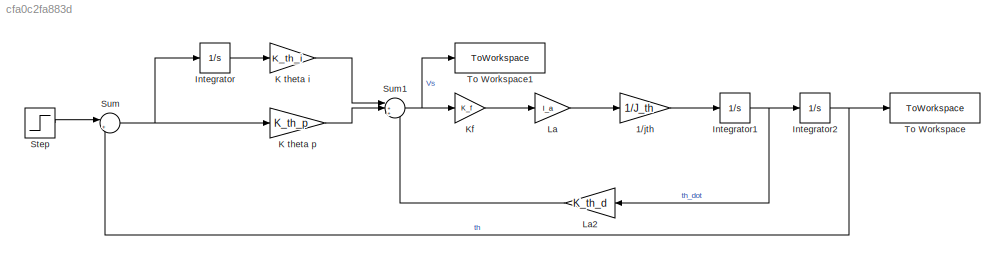
MODEL slx_cfa0c2fa883d
KIND model
CONFIG AbsTol = auto
CONFIG EnableMultiTasking = off
CONFIG FixedStep = auto
CONFIG MaxStep = auto
CONFIG MinStep = auto
CONFIG RelTol = 1e-3
CONFIG SampleTimeConstraint = Unconstrained
CONFIG SolverName = VariableStepAuto
CONFIG StartTime = 0.0
CONFIG StopTime = 20
BLOCK [Gain] 1//jth
  Gain = 1/J_th
BLOCK [Integrator] Integrator
  Ports = [1, 1]
BLOCK [Integrator] Integrator1
  Ports = [1, 1]
BLOCK [Integrator] Integrator2
  Ports = [1, 1]
BLOCK [Gain] K theta i
  Gain = K_th_i
BLOCK [Gain] K theta p
  Gain = K_th_p
BLOCK [Gain] Kf
  Gain = K_f
BLOCK [Gain] La
  Gain = l_a
BLOCK [Gain] La2
  Gain = K_th_d
  NameLocation = top
BLOCK [Step] Step
  After = deg2rad(20)
  SampleTime = 0.01
  Time = 0
BLOCK [Sum] Sum
  Inputs = |+-
  Ports = [2, 1]
BLOCK [Sum] Sum1
  Inputs = |++-
  Ports = [3, 1]
BLOCK [ToWorkspace] To Workspace
  FixptAsFi = on
  MaxDataPoints = inf
  Ports = [1]
  SampleTime = -1
  VariableName = pitch_out
BLOCK [ToWorkspace] To Workspace1
  FixptAsFi = on
  MaxDataPoints = inf
  Ports = [1]
  SampleTime = -1
  VariableName = pitch_Vs
LINE 1//jth:1 -> Integrator1:1
NET Integrator1:1 -> Integrator2:1, La2:1
NET Integrator2:1 -> Sum:2, To Workspace:1
LINE Integrator:1 -> K theta i:1
LINE K theta i:1 -> Sum1:1
LINE K theta p:1 -> Sum1:2
LINE Kf:1 -> La:1
LINE La2:1 -> Sum1:3
LINE La:1 -> 1//jth:1
LINE Step:1 -> Sum:1
NET Sum1:1 -> Kf:1, To Workspace1:1
NET Sum:1 -> Integrator:1, K theta p:1
note: NET lines group one-source signal fan-out (src -> all destinations, sorted); 1:1 wires keep LINE
